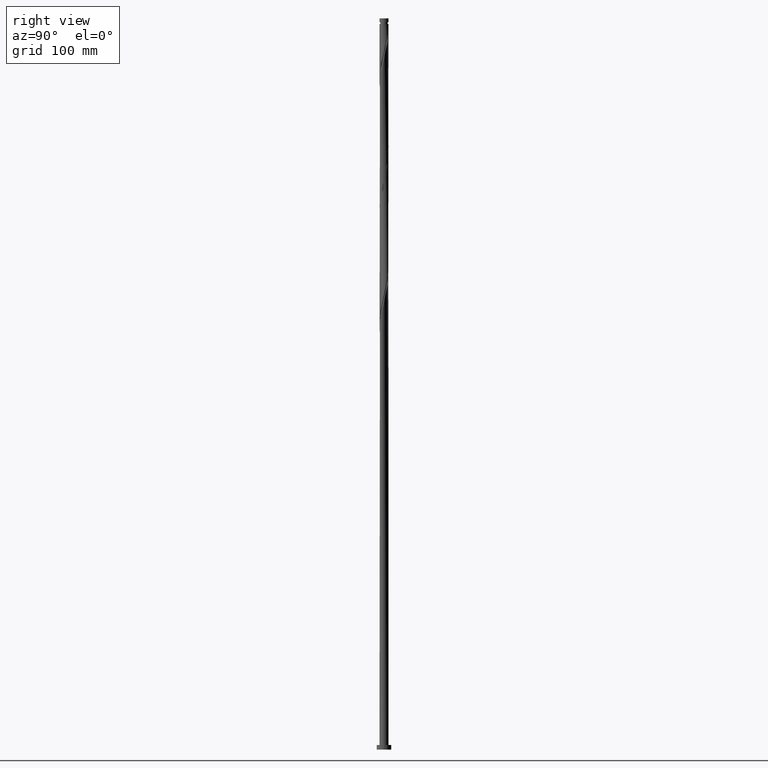
[diagram: clean part render]
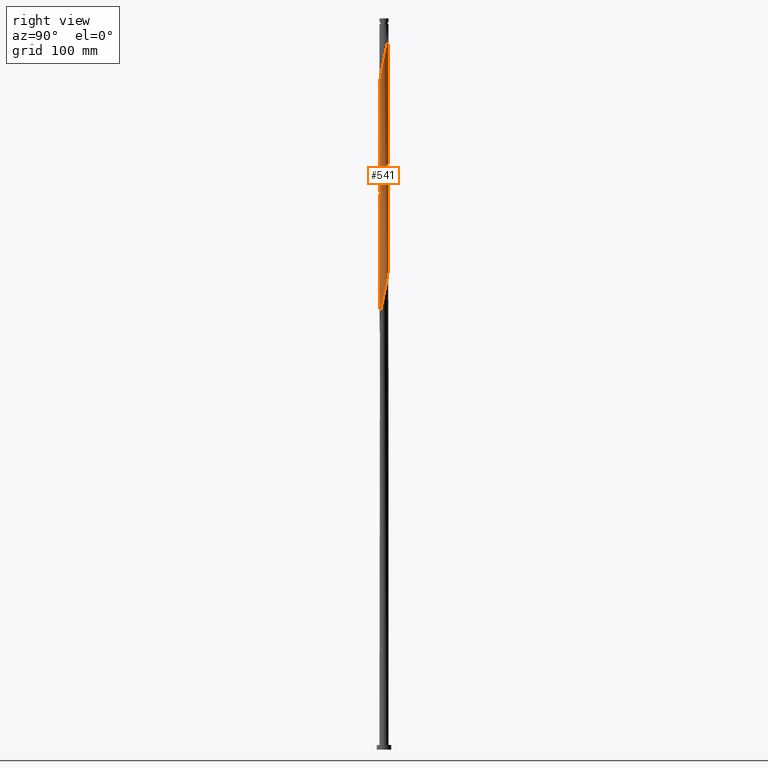
[diagram: same view with one face highlighted and labeled with its STEP entity id]
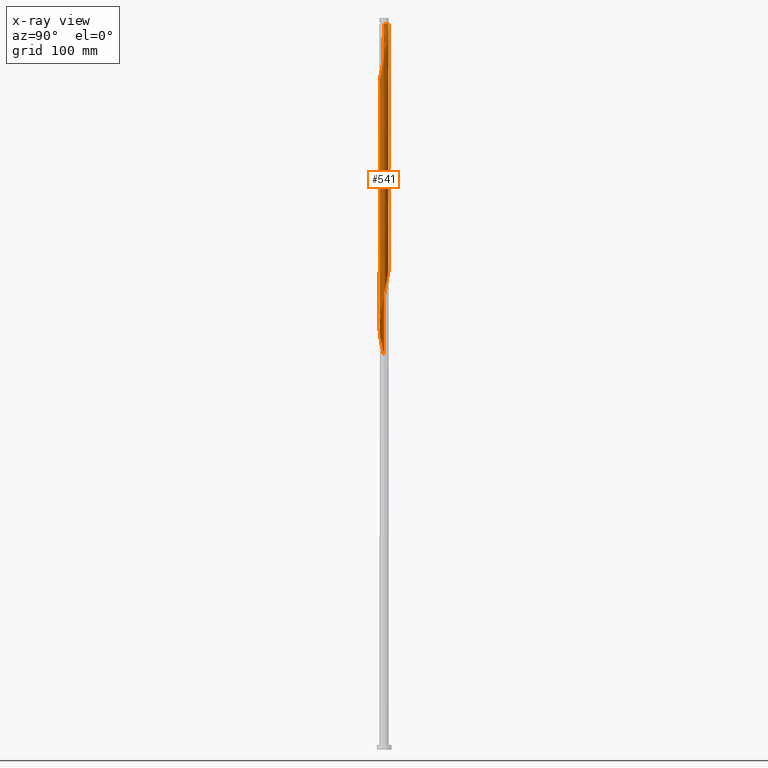
[diagram: x-ray of the same camera — body ghosted, the highlighted face saturated]
A machine part, right view. The second image highlights one B-rep face of the part: STEP entity #541.
The next image is the same camera in x-ray: the body ghosted, the highlighted face saturated — about 0% of this face is hidden behind the body in this view.
In plain terms, the highlighted cylindrical surface (bore or boss wall) has radius 5 mm, axis along (-0, -0, -1).
Its self-contained STEP definition (entity closure, byte-faithful):
#5 = CARTESIAN_POINT ( 'NONE',  ( -4.801098604423230221, -1.396227843371344424, 695.6160161196218041 ) ) ;
#9 = CARTESIAN_POINT ( 'NONE',  ( 0.6499511258119734514, -4.957576377026960301, 600.8791740143583411 ) ) ;
#20 = DIRECTION ( 'NONE',  ( -0.000000000000000000, -0.000000000000000000, -1.000000000000000000 ) ) ;
#24 = CARTESIAN_POINT ( 'NONE',  ( -2.224457399218035203, 4.477922428879730354, 541.2300512073406935 ) ) ;
#34 = CARTESIAN_POINT ( 'NONE',  ( -4.799375357805534925, -1.462070604540713914, 571.0546126108495173 ) ) ;
#35 = CARTESIAN_POINT ( 'NONE',  ( 5.000000000000000888, 0.1192366712258331463, 631.9532187072715033 ) ) ;
#39 = CARTESIAN_POINT ( 'NONE',  ( -0.2391546351814064497, 5.011432862789276577, 665.7914547161126393 ) ) ;
#49 = CARTESIAN_POINT ( 'NONE',  ( -0.2391546351814064497, 5.011432862789276577, 532.4581213827794954 ) ) ;
#53 = CARTESIAN_POINT ( 'NONE',  ( 0.9949874371066296241, 4.899999999999997691, 660.5282968213758750 ) ) ;
#61 = CARTESIAN_POINT ( 'NONE',  ( -4.974567045559859402, -0.6521786465401323563, 434.2125073476916555 ) ) ;
#70 = CARTESIAN_POINT ( 'NONE',  ( 0.5889618610978697433, -4.982447009647494873, 725.4405775231304006 ) ) ;
#72 = ORIENTED_EDGE ( 'NONE', *, *, #748, .F. ) ;
#75 = CARTESIAN_POINT ( 'NONE',  ( 0.2391546351814050897, -5.011432862789275688, 465.7914547161126961 ) ) ;
#82 = VERTEX_POINT ( 'NONE', #686 ) ;
#83 = CARTESIAN_POINT ( 'NONE',  ( 4.064598413571491875, -2.941206217551778135, 742.9844371722532514 ) ) ;
#88 = CARTESIAN_POINT ( 'NONE',  ( 2.532103672393923866, 4.311432591639258405, 520.1774196283934089 ) ) ;
#92 = AXIS2_PLACEMENT_3D ( 'NONE', #1041, #531, #1730 ) ;
#98 = CARTESIAN_POINT ( 'NONE',  ( 3.525055956709932659, -3.570102908858084234, 739.4756652424288177 ) ) ;
#102 = CARTESIAN_POINT ( 'NONE',  ( -0.6499511258119736734, 4.957576377026959413, 534.2125073476917123 ) ) ;
#111 = CARTESIAN_POINT ( 'NONE',  ( 0.2391546351814078653, 5.011432862789283682, 788.5984722599725956 ) ) ;
#143 = CARTESIAN_POINT ( 'NONE',  ( 0.6499511258119766710, 4.957576377026966519, 786.8440862950601513 ) ) ;
#159 = CARTESIAN_POINT ( 'NONE',  ( 0.000000000000000000, 0.000000000000000000, 800.0000000000000000 ) ) ;
#165 = DIRECTION ( 'NONE',  ( -0.000000000000000000, -0.000000000000000000, -1.000000000000000000 ) ) ;
#167 = CARTESIAN_POINT ( 'NONE',  ( -4.994316278799814768, -0.2383378008524572045, 565.7914547161126393 ) ) ;
#181 = CARTESIAN_POINT ( 'NONE',  ( -3.849006011064417088, 3.218199341955536585, 550.0019810319021190 ) ) ;
#191 = CARTESIAN_POINT ( 'NONE',  ( -3.525055956709929106, -3.570102908858077573, 581.5809284003231596 ) ) ;
#200 = LINE ( 'NONE', #367, #1232 ) ;
#203 = CARTESIAN_POINT ( 'NONE',  ( -3.266812383747513149, 3.807832864920276172, 546.4932091020776852 ) ) ;
#214 = CARTESIAN_POINT ( 'NONE',  ( -3.207207559597157420, -3.835859704116256097, 583.3353143652356039 ) ) ;
#220 = CARTESIAN_POINT ( 'NONE',  ( -3.266812383747513149, 3.807832864920276172, 679.8265424354110564 ) ) ;
#228 = CARTESIAN_POINT ( 'NONE',  ( 3.794827185140709158, 3.255654563204924301, 513.1598757687442003 ) ) ;
#233 = CARTESIAN_POINT ( 'NONE',  ( 2.889359162484385735, -4.101616499374442171, 735.9668933126039292 ) ) ;
#239 = CARTESIAN_POINT ( 'NONE',  ( -4.278933817449789956, -2.586643652667403703, 442.9844371722531378 ) ) ;
#240 =( BOUNDED_CURVE ( )  B_SPLINE_CURVE ( 2, ( #1726, #717, #884, #1408, #1443, #1935, #919, #1082, #1105, #1070, #1764, #220, #1633, #243, #903, #894, #1611, #590, #1598, #39, #256, #934, #53, #1270, #1419, #564, #1245, #1778, #766, #1455, #2151, #1945, #741, #577, #1957, #1229, #1219, #1581, #1608, #35, #345 ),
 .UNSPECIFIED., .F., .T. ) 
 B_SPLINE_CURVE_WITH_KNOTS ( ( 3, 2, 2, 2, 2, 2, 2, 2, 2, 2, 2, 2, 2, 2, 2, 2, 2, 2, 2, 2, 3 ),
 ( 0.4295295809515958241, 0.4342105263157894912, 0.4407894736842105088, 0.4473684210526315819, 0.4539473684210526550, 0.4605263157894736725, 0.4671052631578947456, 0.4736842105263157632, 0.4802631578947368363, 0.4868421052631579093, 0.4934210526315789269, 0.5000000000000000000, 0.5065789473684210176, 0.5131578947368421462, 0.5197368421052631637, 0.5263157894736841813, 0.5328947368421053099, 0.5394736842105263275, 0.5460526315789473450, 0.5526315789473684736, 0.5545295809515955465 ),
 .UNSPECIFIED. ) 
 CURVE ( )  GEOMETRIC_REPRESENTATION_ITEM ( )  RATIONAL_B_SPLINE_CURVE ( ( 0.9078162034606489517, 0.9068816855934562771, 0.9090909090909780055, 0.9059859027334048465, 0.9090909090909780055, 0.9059859027334048465, 0.9090909090909780055, 0.9059859027334048465, 0.9090909090909780055, 0.9059859027334048465, 0.9090909090909780055, 0.9059859027334048465, 0.9090909090909780055, 0.9059859027334048465, 0.9090909090909780055, 0.9059859027334048465, 0.9090909090909780055, 0.9059859027334048465, 0.9090909090909780055, 0.9059859027334048465, 0.9090909090909780055, 0.9059859027334048465, 0.9090909090909780055, 0.9059859027334048465, 0.9090909090909780055, 0.9059859027334048465, 0.9090909090909780055, 0.9059859027334048465, 0.9090909090909780055, 0.9059859027334048465, 0.9090909090909780055, 0.9059859027334048465, 0.9090909090909780055, 0.9059859027334048465, 0.9090909090909780055, 0.9059859027334048465, 0.9090909090909780055, 0.9059859027334048465, 0.9090909090909780055, 0.9081951262309266859, 0.9078162034606491737 ) ) 
 REPRESENTATION_ITEM ( '' )  );
#243 = CARTESIAN_POINT ( 'NONE',  ( -2.595508630546284223, 4.293598633609434501, 676.3177705055863953 ) ) ;
#247 = CARTESIAN_POINT ( 'NONE',  ( -4.326208788009316741, -2.540781730161819407, 700.8791740143582274 ) ) ;
#250 = ORIENTED_EDGE ( 'NONE', *, *, #380, .T. ) ;
#252 = CARTESIAN_POINT ( 'NONE',  ( 3.207207559597159641, 3.835859704116254321, 516.6686476985687477 ) ) ;
#256 = CARTESIAN_POINT ( 'NONE',  ( 0.1749036129582320631, 4.996939936218380396, 664.0370687512006498 ) ) ;
#261 = EDGE_LOOP ( 'NONE', ( #1636, #250, #72, #1460, #1363, #1934, #571, #454 ) ) ;
#263 = CARTESIAN_POINT ( 'NONE',  ( 0.1749036129582320631, 4.996939936218380396, 530.7037354178671649 ) ) ;
#268 = CARTESIAN_POINT ( 'NONE',  ( 3.207207559597160973, -3.835859704116263202, 737.7212792775163734 ) ) ;
#272 = CARTESIAN_POINT ( 'NONE',  ( 0.9949874371066296241, 4.899999999999997691, 527.1949634880425037 ) ) ;
#283 = CARTESIAN_POINT ( 'NONE',  ( 3.557909197405970669, 3.513016103437909265, 772.8089985757619615 ) ) ;
#316 = CARTESIAN_POINT ( 'NONE',  ( -5.000000000000007105, -5.822197897237592132E-16, 689.6096979539203176 ) ) ;
#333 =( BOUNDED_CURVE ( )  B_SPLINE_CURVE ( 2, ( #2245, #1892, #859, #561, #1228, #1415, #357, #1919, #1055, #1567, #1240, #714, #1930, #726, #679, #879, #2103, #890, #9, #382, #1366, #1404, #1065, #700, #1761, #1548, #1736, #347, #214, #191, #513, #1594, #1381, #1078, #1749, #34, #1904, #1942, #167, #389, #1558, #369, #2237, #2089, #1199, #1032, #1722, #181, #691, #203, #536, #1580, #24, #2077, #525, #1207, #102, #49, #263, #1467, #272, #1978, #1607, #2162, #88, #607, #252, #1292, #228, #1100, #1253, #1126, #1799, #2125, #1991, #750, #445, #1115, #953, #1265, #435, #1426, #596, #1480, #1280, #1820, #1966, #777, #2175, #1652, #737, #573, #424, #415, #1617, #75, #929, #761, #791, #1773, #1953, #620, #1809, #400, #914, #1629, #1303, #941, #239, #1088, #2003, #1784, #900, #61, #1439, #2137, #586 ),
 .UNSPECIFIED., .F., .T. ) 
 B_SPLINE_CURVE_WITH_KNOTS ( ( 3, 2, 2, 2, 2, 2, 2, 2, 2, 2, 2, 2, 2, 2, 2, 2, 2, 2, 2, 2, 2, 2, 2, 2, 2, 2, 2, 2, 2, 2, 2, 2, 2, 2, 2, 2, 2, 2, 2, 2, 2, 2, 2, 2, 2, 2, 2, 2, 2, 2, 2, 2, 2, 2, 2, 2, 2, 2, 3 ),
 ( 0.5545295809515955465, 0.5592105263157894912, 0.5657894736842105088, 0.5723684210526315264, 0.5789473684210526550, 0.5855263157894736725, 0.5921052631578946901, 0.5986842105263158187, 0.6052631578947368363, 0.6118421052631578538, 0.6184210526315789824, 0.6250000000000000000, 0.6315789473684210176, 0.6381578947368421462, 0.6447368421052631637, 0.6513157894736841813, 0.6578947368421053099, 0.6644736842105263275, 0.6710526315789473450, 0.6776315789473684736, 0.6842105263157894912, 0.6907894736842105088, 0.6973684210526315264, 0.7039473684210526550, 0.7105263157894736725, 0.7171052631578946901, 0.7236842105263158187, 0.7302631578947368363, 0.7368421052631578538, 0.7434210526315789824, 0.7500000000000000000, 0.7565789473684210176, 0.7631578947368421462, 0.7697368421052631637, 0.7763157894736841813, 0.7828947368421053099, 0.7894736842105263275, 0.7960526315789473450, 0.8026315789473684736, 0.8092105263157894912, 0.8157894736842105088, 0.8223684210526315264, 0.8289473684210526550, 0.8355263157894736725, 0.8421052631578946901, 0.8486842105263158187, 0.8552631578947368363, 0.8618421052631578538, 0.8684210526315789824, 0.8750000000000000000, 0.8815789473684210176, 0.8881578947368422572, 0.8947368421052632748, 0.9013157894736841813, 0.9078947368421053099, 0.9144736842105263275, 0.9210526315789473450, 0.9276315789473684736, 0.9295295809515958796 ),
 .UNSPECIFIED. ) 
 CURVE ( )  GEOMETRIC_REPRESENTATION_ITEM ( )  RATIONAL_B_SPLINE_CURVE ( ( 0.9078162034606491737, 0.9068816855934561660, 0.9090909090909780055, 0.9059859027334048465, 0.9090909090909780055, 0.9059859027334048465, 0.9090909090909780055, 0.9059859027334048465, 0.9090909090909780055, 0.9059859027334048465, 0.9090909090909780055, 0.9059859027334048465, 0.9090909090909780055, 0.9059859027334048465, 0.9090909090909780055, 0.9059859027334048465, 0.9090909090909780055, 0.9059859027334048465, 0.9090909090909780055, 0.9059859027334048465, 0.9090909090909780055, 0.9059859027334048465, 0.9090909090909780055, 0.9059859027334048465, 0.9090909090909780055, 0.9059859027334048465, 0.9090909090909780055, 0.9059859027334048465, 0.9090909090909780055, 0.9059859027334048465, 0.9090909090909780055, 0.9059859027334048465, 0.9090909090909780055, 0.9059859027334048465, 0.9090909090909780055, 0.9059859027334048465, 0.9090909090909780055, 0.9059859027334048465, 0.9090909090909780055, 0.9059859027334048465, 0.9090909090909780055, 0.9059859027334048465, 0.9090909090909780055, 0.9059859027334048465, 0.9090909090909780055, 0.9059859027334048465, 0.9090909090909780055, 0.9059859027334048465, 0.9090909090909780055, 0.9059859027334048465, 0.9090909090909780055, 0.9059859027334048465, 0.9090909090909780055, 0.9059859027334048465, 0.9090909090909780055, 0.9059859027334048465, 0.9090909090909780055, 0.9059859027334048465, 0.9090909090909780055, 0.9059859027334048465, 0.9090909090909780055, 0.9059859027334048465, 0.9090909090909780055, 0.9059859027334048465, 0.9090909090909780055, 0.9059859027334048465, 0.9090909090909780055, 0.9059859027334048465, 0.9090909090909780055, 0.9059859027334048465, 0.9090909090909780055, 0.9059859027334048465, 0.9090909090909780055, 0.9059859027334048465, 0.9090909090909780055, 0.9059859027334048465, 0.9090909090909780055, 0.9059859027334048465, 0.9090909090909780055, 0.9059859027334048465, 0.9090909090909780055, 0.9059859027334048465, 0.9090909090909780055, 0.9059859027334048465, 0.9090909090909780055, 0.9059859027334048465, 0.9090909090909780055, 0.9059859027334048465, 0.9090909090909780055, 0.9059859027334048465, 0.9090909090909780055, 0.9059859027334048465, 0.9090909090909780055, 0.9059859027334048465, 0.9090909090909780055, 0.9059859027334048465, 0.9090909090909780055, 0.9059859027334048465, 0.9090909090909780055, 0.9059859027334048465, 0.9090909090909780055, 0.9059859027334048465, 0.9090909090909780055, 0.9059859027334048465, 0.9090909090909780055, 0.9059859027334048465, 0.9090909090909780055, 0.9059859027334048465, 0.9090909090909780055, 0.9059859027334048465, 0.9090909090909780055, 0.9059859027334048465, 0.9090909090909780055, 0.9059859027334048465, 0.9090909090909780055, 0.9081951262309264639, 0.9078162034606489517 ) ) 
 REPRESENTATION_ITEM ( '' )  );
#345 = CARTESIAN_POINT ( 'NONE',  ( 5.000000000000000888, -5.911770172579741004E-15, 631.4468956888314324 ) ) ;
#347 = CARTESIAN_POINT ( 'NONE',  ( -2.889359162484385735, -4.101616499374435065, 585.0897003301478208 ) ) ;
#357 = CARTESIAN_POINT ( 'NONE',  ( 4.505806327405622369, -2.167419973127374000, 621.9318055933055120 ) ) ;
#367 = CARTESIAN_POINT ( 'NONE',  ( -5.000000000000000000, 0.000000000000000000, 800.0000000000000000 ) ) ;
#369 = CARTESIAN_POINT ( 'NONE',  ( -4.916793342044511128, 0.9983974706497559248, 560.5282968213757613 ) ) ;
#378 = VECTOR ( 'NONE', #2068, 1000.000000000000000 ) ;
#380 = EDGE_CURVE ( 'NONE', #1534, #2071, #1348, .T. ) ;
#382 = CARTESIAN_POINT ( 'NONE',  ( 0.2391546351814050897, -5.011432862789275688, 599.1247880494461242 ) ) ;
#389 = CARTESIAN_POINT ( 'NONE',  ( -5.014065512039769246, 0.1755030448352179751, 564.0370687512004224 ) ) ;
#396 = CARTESIAN_POINT ( 'NONE',  ( -4.965429427042146848, -0.5869502577424865475, 692.1072441897971430 ) ) ;
#400 = CARTESIAN_POINT ( 'NONE',  ( -2.889359162484385735, -4.101616499374435065, 451.7563669968144495 ) ) ;
#411 = CARTESIAN_POINT ( 'NONE',  ( -1.853406167889788181, -4.662246224150030649, 714.9142617336564172 ) ) ;
#415 = CARTESIAN_POINT ( 'NONE',  ( 1.060747616442539787, -4.903719891264644914, 469.3002266459372436 ) ) ;
#424 = CARTESIAN_POINT ( 'NONE',  ( 1.457076892166162319, -4.782983057707333785, 471.0546126108495173 ) ) ;
#432 = CARTESIAN_POINT ( 'NONE',  ( -2.224457399218039200, -4.477922428879735683, 713.1598757687446550 ) ) ;
#435 = CARTESIAN_POINT ( 'NONE',  ( 4.801098604423221339, -1.396227843371345312, 492.1072441897969725 ) ) ;
#445 = CARTESIAN_POINT ( 'NONE',  ( 4.994316278799814768, 0.2383378008524554004, 499.1247880494460105 ) ) ;
#454 = ORIENTED_EDGE ( 'NONE', *, *, #640, .F. ) ;
#455 = CARTESIAN_POINT ( 'NONE',  ( -0.5889618610978899493, 4.982447009647493985, 792.1072441897970293 ) ) ;
#508 = VERTEX_POINT ( 'NONE', #1211 ) ;
#513 = CARTESIAN_POINT ( 'NONE',  ( -3.794827185140709158, -3.255654563204924745, 579.8265424354109427 ) ) ;
#518 = VECTOR ( 'NONE', #165, 1000.000000000000000 ) ;
#525 = CARTESIAN_POINT ( 'NONE',  ( -1.457076892166162319, 4.782983057707333785, 537.7212792775162598 ) ) ;
#531 = DIRECTION ( 'NONE',  ( -0.000000000000000000, -0.000000000000000000, -1.000000000000000000 ) ) ;
#533 = CARTESIAN_POINT ( 'NONE',  ( -3.557909197405970669, -3.513016103437910154, 706.1423319090953328 ) ) ;
#536 = CARTESIAN_POINT ( 'NONE',  ( -2.931160507146898020, 4.050715749264855781, 544.7388231371652410 ) ) ;
#539 = FACE_OUTER_BOUND ( 'NONE', #261, .T. ) ;
#541 = ADVANCED_FACE ( 'NONE', ( #539 ), #1531, .T. ) ;
#561 = CARTESIAN_POINT ( 'NONE',  ( 4.916793342044511128, -0.9983974706497565910, 627.1949634880425037 ) ) ;
#564 = CARTESIAN_POINT ( 'NONE',  ( 2.174848182303464217, 4.521248683904080856, 655.2651389266392243 ) ) ;
#571 = ORIENTED_EDGE ( 'NONE', *, *, #1657, .T. ) ;
#573 = CARTESIAN_POINT ( 'NONE',  ( 1.853406167889783740, -4.662246224150026208, 472.8089985757617910 ) ) ;
#577 = CARTESIAN_POINT ( 'NONE',  ( 4.493269221328091589, 2.232081087783037709, 641.2300512073406935 ) ) ;
#581 = CARTESIAN_POINT ( 'NONE',  ( 4.493269221328096030, -2.232081087783042150, 746.4932091020777989 ) ) ;
#586 = CARTESIAN_POINT ( 'NONE',  ( -5.000000000000000000, 3.911322689939121366E-15, 431.4468956888313187 ) ) ;
#590 = CARTESIAN_POINT ( 'NONE',  ( -1.060747616442540675, 4.903719891264643138, 669.3002266459373004 ) ) ;
#593 = CARTESIAN_POINT ( 'NONE',  ( 4.965429427042146848, 0.5869502577424847711, 758.7739108564636581 ) ) ;
#596 = CARTESIAN_POINT ( 'NONE',  ( 4.505806327405622369, -2.167419973127374000, 488.5984722599723113 ) ) ;
#603 = CARTESIAN_POINT ( 'NONE',  ( -4.087607399536869579, -2.879490536058679329, 702.6335599792705580 ) ) ;
#607 = CARTESIAN_POINT ( 'NONE',  ( 2.889359162484386623, 4.101616499374434177, 518.4230336634811920 ) ) ;
#615 = CARTESIAN_POINT ( 'NONE',  ( 5.014065512039775463, 0.1755030448352140060, 757.0195248915514412 ) ) ;
#618 = EDGE_CURVE ( 'NONE', #1534, #508, #1884, .T. ) ;
#620 = CARTESIAN_POINT ( 'NONE',  ( -2.174848182303464661, -4.521248683904080856, 455.2651389266389970 ) ) ;
#627 = CARTESIAN_POINT ( 'NONE',  ( 2.595508630546290885, 4.293598633609438942, 778.0721564704986122 ) ) ;
#640 = EDGE_CURVE ( 'NONE', #508, #1108, #240, .T. ) ;
#672 = DIRECTION ( 'NONE',  ( -0.000000000000000000, -0.000000000000000000, -1.000000000000000000 ) ) ;
#679 = CARTESIAN_POINT ( 'NONE',  ( 2.224457399218034759, -4.477922428879730354, 607.8967178740074360 ) ) ;
#683 = CARTESIAN_POINT ( 'NONE',  ( -5.000000000000000000, 0.000000000000000000, 800.0000000000000000 ) ) ;
#686 = CARTESIAN_POINT ( 'NONE',  ( -5.000000000000000000, 3.911322689939121366E-15, 431.4468956888313187 ) ) ;
#691 = CARTESIAN_POINT ( 'NONE',  ( -3.557909197405964008, 3.513016103437906157, 548.2475950669899021 ) ) ;
#700 = CARTESIAN_POINT ( 'NONE',  ( -1.401013013115387063, -4.817552990352508502, 592.1072441897969156 ) ) ;
#714 = CARTESIAN_POINT ( 'NONE',  ( 3.266812383747511817, -3.807832864920277061, 613.1598757687443140 ) ) ;
#717 = CARTESIAN_POINT ( 'NONE',  ( -4.999999999999998224, 0.2944932087671933152, 696.8630352413129003 ) ) ;
#726 = CARTESIAN_POINT ( 'NONE',  ( 2.595508630546283335, -4.293598633609436277, 609.6511038389197665 ) ) ;
#737 = CARTESIAN_POINT ( 'NONE',  ( 2.224457399218034759, -4.477922428879730354, 474.5633845406741216 ) ) ;
#741 = CARTESIAN_POINT ( 'NONE',  ( 4.278933817449791732, 2.586643652667402371, 642.9844371722527967 ) ) ;
#746 = CARTESIAN_POINT ( 'NONE',  ( -1.060747616442544672, -4.903719891264648467, 718.4230336634810783 ) ) ;
#748 = EDGE_CURVE ( 'NONE', #1621, #2071, #1642, .T. ) ;
#750 = CARTESIAN_POINT ( 'NONE',  ( 4.974567045559859402, 0.6521786465401315791, 500.8791740143584548 ) ) ;
#756 = CARTESIAN_POINT ( 'NONE',  ( 4.974567045559865619, -0.6521786465401347987, 753.5107529617266664 ) ) ;
#761 = CARTESIAN_POINT ( 'NONE',  ( -0.5889618610978728519, -4.982447009647488656, 462.2826827862881487 ) ) ;
#766 = CARTESIAN_POINT ( 'NONE',  ( 3.207207559597159641, 3.835859704116254321, 650.0019810319020053 ) ) ;
#770 = CARTESIAN_POINT ( 'NONE',  ( 4.886971201682704269, -1.057124625540427409, 751.7563669968146769 ) ) ;
#777 = CARTESIAN_POINT ( 'NONE',  ( 3.266812383747511817, -3.807832864920277061, 479.8265424354109996 ) ) ;
#785 = CARTESIAN_POINT ( 'NONE',  ( 4.087607399536869579, 2.879490536058681105, 769.3002266459375278 ) ) ;
#791 = CARTESIAN_POINT ( 'NONE',  ( -0.9949874371066288470, -4.899999999999997691, 460.5282968213759318 ) ) ;
#798 = CARTESIAN_POINT ( 'NONE',  ( -0.1749036129582282328, 4.996939936218388389, 790.3528582248849261 ) ) ;
#808 = VERTEX_POINT ( 'NONE', #1036 ) ;
#832 = CARTESIAN_POINT ( 'NONE',  ( 2.224457399218039644, 4.477922428879734795, 779.8265424354110564 ) ) ;
#857 = LINE ( 'NONE', #1376, #518 ) ;
#859 = CARTESIAN_POINT ( 'NONE',  ( 4.965429427042139743, -0.5869502577424862144, 628.9493494529547206 ) ) ;
#879 = CARTESIAN_POINT ( 'NONE',  ( 1.853406167889783740, -4.662246224150026208, 606.1423319090952191 ) ) ;
#884 = CARTESIAN_POINT ( 'NONE',  ( -4.965429427042139743, 0.5869502577424867695, 695.6160161196216905 ) ) ;
#890 = CARTESIAN_POINT ( 'NONE',  ( 1.060747616442539787, -4.903719891264644914, 602.6335599792705580 ) ) ;
#894 = CARTESIAN_POINT ( 'NONE',  ( -1.853406167889784628, 4.662246224150025320, 672.8089985757618479 ) ) ;
#900 = CARTESIAN_POINT ( 'NONE',  ( -4.886971201682697163, -1.057124625540422302, 435.9668933126039292 ) ) ;
#903 = CARTESIAN_POINT ( 'NONE',  ( -2.224457399218035203, 4.477922428879730354, 674.5633845406739511 ) ) ;
#909 = CARTESIAN_POINT ( 'NONE',  ( -0.2391546351814093085, -5.011432862789283682, 721.9318055933058531 ) ) ;
#914 = CARTESIAN_POINT ( 'NONE',  ( -3.207207559597157420, -3.835859704116256097, 450.0019810319021190 ) ) ;
#919 = CARTESIAN_POINT ( 'NONE',  ( -4.505806327405622369, 2.167419973127374888, 688.5984722599722545 ) ) ;
#924 = CARTESIAN_POINT ( 'NONE',  ( -3.849006011064423305, -3.218199341955540138, 704.3879459441833433 ) ) ;
#929 = CARTESIAN_POINT ( 'NONE',  ( -0.1749036129582328125, -4.996939936218382172, 464.0370687512004224 ) ) ;
#934 = CARTESIAN_POINT ( 'NONE',  ( 0.5889618610978712976, 4.982447009647488656, 662.2826827862883192 ) ) ;
#938 = CARTESIAN_POINT ( 'NONE',  ( -4.505806327405627698, -2.167419973127375776, 699.1247880494463516 ) ) ;
#941 = CARTESIAN_POINT ( 'NONE',  ( -4.064598413571486546, -2.941206217551772362, 444.7388231371654115 ) ) ;
#949 = CARTESIAN_POINT ( 'NONE',  ( 4.505806327405629474, 2.167419973127374444, 765.7914547161128667 ) ) ;
#953 = CARTESIAN_POINT ( 'NONE',  ( 4.965429427042139743, -0.5869502577424862144, 495.6160161196214062 ) ) ;
#960 = CARTESIAN_POINT ( 'NONE',  ( 3.266812383747518922, 3.807832864920280169, 774.5633845406742921 ) ) ;
#991 = CARTESIAN_POINT ( 'NONE',  ( 1.060747616442545560, 4.903719891264649355, 785.0897003301479344 ) ) ;
#1002 = CARTESIAN_POINT ( 'NONE',  ( 1.853406167889788625, 4.662246224150031537, 781.5809284003232733 ) ) ;
#1008 = CARTESIAN_POINT ( 'NONE',  ( -5.000000000000005329, -0.2944932087671843224, 690.8602250681055921 ) ) ;
#1032 = CARTESIAN_POINT ( 'NONE',  ( -4.326208788009311412, 2.540781730161816743, 553.5107529617267801 ) ) ;
#1036 = CARTESIAN_POINT ( 'NONE',  ( 5.000000000000000000, 6.123233995736766282E-16, 793.8616301547092462 ) ) ;
#1041 = CARTESIAN_POINT ( 'NONE',  ( 0.000000000000000000, 0.000000000000000000, 793.8616301547092462 ) ) ;
#1055 = CARTESIAN_POINT ( 'NONE',  ( 4.087607399536862474, -2.879490536058677552, 618.4230336634811920 ) ) ;
#1065 = CARTESIAN_POINT ( 'NONE',  ( -0.9949874371066288470, -4.899999999999997691, 593.8616301547091325 ) ) ;
#1070 = CARTESIAN_POINT ( 'NONE',  ( -3.849006011064417088, 3.218199341955536585, 683.3353143652357176 ) ) ;
#1078 = CARTESIAN_POINT ( 'NONE',  ( -4.493269221328091589, -2.232081087783038154, 574.5633845406741784 ) ) ;
#1082 = CARTESIAN_POINT ( 'NONE',  ( -4.326208788009311412, 2.540781730161816743, 686.8440862950602650 ) ) ;
#1088 = CARTESIAN_POINT ( 'NONE',  ( -4.493269221328091589, -2.232081087783038154, 441.2300512073407504 ) ) ;
#1091 = CARTESIAN_POINT ( 'NONE',  ( 5.000000000000000000, -5.911770172579741004E-15, 631.4468956888314324 ) ) ;
#1100 = CARTESIAN_POINT ( 'NONE',  ( 4.064598413571489210, 2.941206217551771473, 511.4054898038320403 ) ) ;
#1105 = CARTESIAN_POINT ( 'NONE',  ( -4.087607399536863362, 2.879490536058676664, 685.0897003301477071 ) ) ;
#1108 = VERTEX_POINT ( 'NONE', #1091 ) ;
#1115 = CARTESIAN_POINT ( 'NONE',  ( 5.014065512039768358, -0.1755030448352206673, 497.3704020845337936 ) ) ;
#1122 = CARTESIAN_POINT ( 'NONE',  ( 4.685403866801941319, 1.794058216092929703, 764.0370687512004224 ) ) ;
#1126 = CARTESIAN_POINT ( 'NONE',  ( 4.493269221328091589, 2.232081087783037709, 507.8967178740073791 ) ) ;
#1132 = CARTESIAN_POINT ( 'NONE',  ( 0.9949874371066286249, -4.900000000000006573, 727.1949634880427311 ) ) ;
#1173 = EDGE_CURVE ( 'NONE', #1108, #82, #333, .T. ) ;
#1187 = CARTESIAN_POINT ( 'NONE',  ( -4.999999999999915623, 0.000000000000000000, 793.8616301547092462 ) ) ;
#1199 = CARTESIAN_POINT ( 'NONE',  ( -4.505806327405622369, 2.167419973127374888, 555.2651389266389970 ) ) ;
#1207 = CARTESIAN_POINT ( 'NONE',  ( -1.060747616442540675, 4.903719891264643138, 535.9668933126039292 ) ) ;
#1211 = CARTESIAN_POINT ( 'NONE',  ( -5.000000000000000000, 1.910875207298502123E-15, 698.1135623554980612 ) ) ;
#1219 = CARTESIAN_POINT ( 'NONE',  ( 4.886971201682697163, 1.057124625540423413, 635.9668933126037018 ) ) ;
#1228 = CARTESIAN_POINT ( 'NONE',  ( 4.801098604423221339, -1.396227843371345312, 625.4405775231302869 ) ) ;
#1229 = CARTESIAN_POINT ( 'NONE',  ( 4.799375357805534925, 1.462070604540711249, 637.7212792775162598 ) ) ;
#1232 = VECTOR ( 'NONE', #20, 1000.000000000000000 ) ;
#1240 = CARTESIAN_POINT ( 'NONE',  ( 3.557909197405964008, -3.513016103437906157, 614.9142617336566445 ) ) ;
#1245 = CARTESIAN_POINT ( 'NONE',  ( 2.532103672393923866, 4.311432591639258405, 653.5107529617266664 ) ) ;
#1250 = CARTESIAN_POINT ( 'NONE',  ( 0.1749036129582310639, -4.996939936218388389, 723.6861915582180700 ) ) ;
#1253 = CARTESIAN_POINT ( 'NONE',  ( 4.278933817449791732, 2.586643652667402371, 509.6511038389196528 ) ) ;
#1265 = CARTESIAN_POINT ( 'NONE',  ( 4.916793342044511128, -0.9983974706497565910, 493.8616301547091894 ) ) ;
#1270 = CARTESIAN_POINT ( 'NONE',  ( 1.401013013115388173, 4.817552990352508502, 658.7739108564637718 ) ) ;
#1276 = CARTESIAN_POINT ( 'NONE',  ( -3.266812383747517590, -3.807832864920281057, 707.8967178740075497 ) ) ;
#1280 = CARTESIAN_POINT ( 'NONE',  ( 4.087607399536862474, -2.879490536058677552, 485.0897003301478208 ) ) ;
#1289 = CARTESIAN_POINT ( 'NONE',  ( 3.794827185140713599, -3.255654563204931407, 741.2300512073410346 ) ) ;
#1292 = CARTESIAN_POINT ( 'NONE',  ( 3.525055956709929550, 3.570102908858077573, 514.9142617336566445 ) ) ;
#1299 = CARTESIAN_POINT ( 'NONE',  ( 4.799375357805542031, -1.462070604540719909, 750.0019810319023463 ) ) ;
#1303 = CARTESIAN_POINT ( 'NONE',  ( -3.794827185140709158, -3.255654563204924745, 446.4932091020775147 ) ) ;
#1348 = CIRCLE ( 'NONE', #92, 4.999999999999915623 ) ;
#1361 = DIRECTION ( 'NONE',  ( -1.000000000000000000, 0.000000000000000000, 0.000000000000000000 ) ) ;
#1363 = ORIENTED_EDGE ( 'NONE', *, *, #1173, .F. ) ;
#1366 = CARTESIAN_POINT ( 'NONE',  ( -0.1749036129582328125, -4.996939936218382172, 597.3704020845337936 ) ) ;
#1376 = CARTESIAN_POINT ( 'NONE',  ( 5.000000000000000000, 6.123233995736766282E-16, 800.0000000000000000 ) ) ;
#1380 = EDGE_CURVE ( 'NONE', #1621, #82, #200, .T. ) ;
#1381 = CARTESIAN_POINT ( 'NONE',  ( -4.278933817449789956, -2.586643652667403703, 576.3177705055862816 ) ) ;
#1404 = CARTESIAN_POINT ( 'NONE',  ( -0.5889618610978728519, -4.982447009647488656, 595.6160161196215768 ) ) ;
#1408 = CARTESIAN_POINT ( 'NONE',  ( -4.916793342044511128, 0.9983974706497559248, 693.8616301547091325 ) ) ;
#1415 = CARTESIAN_POINT ( 'NONE',  ( 4.685403866801931549, -1.794058216092933922, 623.6861915582178426 ) ) ;
#1419 = CARTESIAN_POINT ( 'NONE',  ( 1.787930597709427083, 4.669400837128293347, 657.0195248915513275 ) ) ;
#1426 = CARTESIAN_POINT ( 'NONE',  ( 4.685403866801931549, -1.794058216092933922, 490.3528582248845851 ) ) ;
#1434 = CARTESIAN_POINT ( 'NONE',  ( -1.457076892166166537, -4.782983057707340890, 716.6686476985688614 ) ) ;
#1439 = CARTESIAN_POINT ( 'NONE',  ( -4.994316278799814768, -0.2383378008524572045, 432.4581213827793249 ) ) ;
#1443 = CARTESIAN_POINT ( 'NONE',  ( -4.801098604423221339, 1.396227843371343535, 692.1072441897970293 ) ) ;
#1448 = CARTESIAN_POINT ( 'NONE',  ( 4.994316278799820985, -0.2383378008524581759, 755.2651389266391107 ) ) ;
#1455 = CARTESIAN_POINT ( 'NONE',  ( 3.525055956709929550, 3.570102908858077573, 648.2475950669897884 ) ) ;
#1460 = ORIENTED_EDGE ( 'NONE', *, *, #1380, .T. ) ;
#1461 = CARTESIAN_POINT ( 'NONE',  ( 4.916793342044518234, 0.9983974706497554807, 760.5282968213758750 ) ) ;
#1467 = CARTESIAN_POINT ( 'NONE',  ( 0.5889618610978712976, 4.982447009647488656, 528.9493494529549480 ) ) ;
#1476 = CARTESIAN_POINT ( 'NONE',  ( 3.849006011064424637, 3.218199341955537474, 771.0546126108495173 ) ) ;
#1480 = CARTESIAN_POINT ( 'NONE',  ( 4.326208788009311412, -2.540781730161817187, 486.8440862950600376 ) ) ;
#1531 = CYLINDRICAL_SURFACE ( 'NONE', #2036, 5.000000000000000000 ) ;
#1534 = VERTEX_POINT ( 'NONE', #1187 ) ;
#1548 = CARTESIAN_POINT ( 'NONE',  ( -2.174848182303464661, -4.521248683904080856, 588.5984722599723682 ) ) ;
#1558 = CARTESIAN_POINT ( 'NONE',  ( -4.965429427042139743, 0.5869502577424867695, 562.2826827862879782 ) ) ;
#1565 = CARTESIAN_POINT ( 'NONE',  ( 2.174848182303464217, -4.521248683904087962, 732.4581213827793817 ) ) ;
#1567 = CARTESIAN_POINT ( 'NONE',  ( 3.849006011064415311, -3.218199341955539250, 616.6686476985688614 ) ) ;
#1580 = CARTESIAN_POINT ( 'NONE',  ( -2.595508630546284223, 4.293598633609434501, 542.9844371722530241 ) ) ;
#1581 = CARTESIAN_POINT ( 'NONE',  ( 4.974567045559859402, 0.6521786465401315791, 634.2125073476914849 ) ) ;
#1594 = CARTESIAN_POINT ( 'NONE',  ( -4.064598413571486546, -2.941206217551772362, 578.0721564704988396 ) ) ;
#1598 = CARTESIAN_POINT ( 'NONE',  ( -0.6499511258119736734, 4.957576377026959413, 667.5458406810249699 ) ) ;
#1607 = CARTESIAN_POINT ( 'NONE',  ( 1.787930597709427083, 4.669400837128293347, 523.6861915582179563 ) ) ;
#1608 = CARTESIAN_POINT ( 'NONE',  ( 4.994316278799814768, 0.2383378008524554004, 632.4581213827793817 ) ) ;
#1611 = CARTESIAN_POINT ( 'NONE',  ( -1.457076892166162319, 4.782983057707333785, 671.0546126108494036 ) ) ;
#1617 = CARTESIAN_POINT ( 'NONE',  ( 0.6499511258119734514, -4.957576377026960301, 467.5458406810250267 ) ) ;
#1621 = VERTEX_POINT ( 'NONE', #1878 ) ;
#1626 = CARTESIAN_POINT ( 'NONE',  ( 4.646322289566819030, -1.847075846161879698, 748.2475950669899021 ) ) ;
#1629 = CARTESIAN_POINT ( 'NONE',  ( -3.525055956709929106, -3.570102908858077573, 448.2475950669899021 ) ) ;
#1633 = CARTESIAN_POINT ( 'NONE',  ( -2.931160507146898020, 4.050715749264855781, 678.0721564704987259 ) ) ;
#1636 = ORIENTED_EDGE ( 'NONE', *, *, #618, .F. ) ;
#1637 = CARTESIAN_POINT ( 'NONE',  ( 1.787930597709425529, -4.669400837128304005, 730.7037354178672786 ) ) ;
#1642 =( BOUNDED_CURVE ( )  B_SPLINE_CURVE ( 2, ( #316, #1008, #396, #1815, #5, #1795, #938, #247, #603, #924, #533, #1276, #2172, #1975, #432, #411, #1434, #746, #1999, #909, #1250, #70, #1132, #1961, #1637, #1565, #1781, #233, #268, #98, #1289, #83, #2134, #581, #1626, #1299, #770, #756, #1448, #615, #593, #1461, #1986, #1122, #949, #1648, #785, #1476, #283, #960, #2010, #627, #832, #1002, #1847, #991, #143, #111, #798, #455, #2192 ),
 .UNSPECIFIED., .F., .F. ) 
 B_SPLINE_CURVE_WITH_KNOTS ( ( 3, 2, 2, 2, 2, 2, 2, 2, 2, 2, 2, 2, 2, 2, 2, 2, 2, 2, 2, 2, 2, 2, 2, 2, 2, 2, 2, 2, 2, 2, 3 ),
 ( 0.5545295809515956575, 0.5592105263157894912, 0.5657894736842105088, 0.5723684210526316374, 0.5789473684210526550, 0.5855263157894736725, 0.5921052631578948011, 0.5986842105263158187, 0.6052631578947369473, 0.6118421052631580759, 0.6184210526315790935, 0.6250000000000001110, 0.6315789473684211286, 0.6381578947368421462, 0.6447368421052632748, 0.6513157894736845144, 0.6578947368421055319, 0.6644736842105265495, 0.6710526315789475671, 0.6776315789473685847, 0.6842105263157897133, 0.6907894736842107308, 0.6973684210526318594, 0.7039473684210528770, 0.7105263157894738946, 0.7171052631578949121, 0.7236842105263159297, 0.7302631578947371693, 0.7368421052631582979, 0.7434210526315793155, 0.7500000000000003331 ),
 .UNSPECIFIED. ) 
 CURVE ( )  GEOMETRIC_REPRESENTATION_ITEM ( )  RATIONAL_B_SPLINE_CURVE ( ( 0.9078162034606538366, 0.9068816855934612731, 0.9090909090909827794, 0.9059859027334098425, 0.9090909090909827794, 0.9059859027334098425, 0.9090909090909827794, 0.9059859027334098425, 0.9090909090909827794, 0.9059859027334098425, 0.9090909090909827794, 0.9059859027334098425, 0.9090909090909827794, 0.9059859027334098425, 0.9090909090909827794, 0.9059859027334098425, 0.9090909090909827794, 0.9059859027334098425, 0.9090909090909827794, 0.9059859027334098425, 0.9090909090909827794, 0.9059859027334098425, 0.9090909090909827794, 0.9059859027334098425, 0.9090909090909827794, 0.9059859027334098425, 0.9090909090909827794, 0.9059859027334098425, 0.9090909090909827794, 0.9059859027334098425, 0.9090909090909827794, 0.9059859027334098425, 0.9090909090909827794, 0.9059859027334098425, 0.9090909090909827794, 0.9059859027334098425, 0.9090909090909827794, 0.9059859027334098425, 0.9090909090909827794, 0.9059859027334098425, 0.9090909090909827794, 0.9059859027334098425, 0.9090909090909827794, 0.9059859027334098425, 0.9090909090909827794, 0.9059859027334098425, 0.9090909090909827794, 0.9059859027334098425, 0.9090909090909827794, 0.9059859027334098425, 0.9090909090909827794, 0.9059859027334098425, 0.9090909090909827794, 0.9059859027334098425, 0.9090909090909827794, 0.9059859027334098425, 0.9090909090909827794, 0.9059859027334098425, 0.9090909090909827794, 0.9059859027334096204, 0.9090909090909830015 ) ) 
 REPRESENTATION_ITEM ( '' )  );
#1648 = CARTESIAN_POINT ( 'NONE',  ( 4.326208788009316741, 2.540781730161818963, 767.5458406810251972 ) ) ;
#1652 = CARTESIAN_POINT ( 'NONE',  ( 2.595508630546283335, -4.293598633609436277, 476.3177705055864521 ) ) ;
#1657 = EDGE_CURVE ( 'NONE', #808, #1108, #857, .T. ) ;
#1722 = CARTESIAN_POINT ( 'NONE',  ( -4.087607399536863362, 2.879490536058676664, 551.7563669968145632 ) ) ;
#1726 = CARTESIAN_POINT ( 'NONE',  ( -5.000000000000000000, 1.910875207298502123E-15, 698.1135623554979475 ) ) ;
#1730 = DIRECTION ( 'NONE',  ( -1.000000000000000000, 0.000000000000000000, 0.000000000000000000 ) ) ;
#1736 = CARTESIAN_POINT ( 'NONE',  ( -2.532103672393922977, -4.311432591639259293, 586.8440862950601513 ) ) ;
#1749 = CARTESIAN_POINT ( 'NONE',  ( -4.646322289566814590, -1.847075846161874813, 572.8089985757616205 ) ) ;
#1761 = CARTESIAN_POINT ( 'NONE',  ( -1.787930597709424640, -4.669400837128295123, 590.3528582248844714 ) ) ;
#1764 = CARTESIAN_POINT ( 'NONE',  ( -3.557909197405964008, 3.513016103437906157, 681.5809284003232733 ) ) ;
#1773 = CARTESIAN_POINT ( 'NONE',  ( -1.401013013115387063, -4.817552990352508502, 458.7739108564636012 ) ) ;
#1778 = CARTESIAN_POINT ( 'NONE',  ( 2.889359162484386623, 4.101616499374434177, 651.7563669968142221 ) ) ;
#1781 = CARTESIAN_POINT ( 'NONE',  ( 2.532103672393926530, -4.311432591639265510, 734.2125073476918260 ) ) ;
#1784 = CARTESIAN_POINT ( 'NONE',  ( -4.799375357805534925, -1.462070604540713914, 437.7212792775162029 ) ) ;
#1795 = CARTESIAN_POINT ( 'NONE',  ( -4.685403866801940431, -1.794058216092932145, 697.3704020845336800 ) ) ;
#1799 = CARTESIAN_POINT ( 'NONE',  ( 4.646322289566814590, 1.847075846161874590, 506.1423319090951054 ) ) ;
#1809 = CARTESIAN_POINT ( 'NONE',  ( -2.532103672393922977, -4.311432591639259293, 453.5107529617267232 ) ) ;
#1815 = CARTESIAN_POINT ( 'NONE',  ( -4.916793342044518234, -0.9983974706497563689, 693.8616301547092462 ) ) ;
#1818 = CARTESIAN_POINT ( 'NONE',  ( -0.9949874371066370626, 4.899999999999925748, 793.8616301547090188 ) ) ;
#1820 = CARTESIAN_POINT ( 'NONE',  ( 3.849006011064415311, -3.218199341955539250, 483.3353143652354902 ) ) ;
#1847 = CARTESIAN_POINT ( 'NONE',  ( 1.457076892166168980, 4.782983057707340890, 783.3353143652357176 ) ) ;
#1878 = CARTESIAN_POINT ( 'NONE',  ( -5.000000000000007105, -5.822197897237592132E-16, 689.6096979539203176 ) ) ;
#1884 = LINE ( 'NONE', #683, #378 ) ;
#1892 = CARTESIAN_POINT ( 'NONE',  ( 5.000000000000000000, -0.2944932087671752741, 630.1963685746462716 ) ) ;
#1904 = CARTESIAN_POINT ( 'NONE',  ( -4.886971201682697163, -1.057124625540422302, 569.3002266459373004 ) ) ;
#1919 = CARTESIAN_POINT ( 'NONE',  ( 4.326208788009311412, -2.540781730161817187, 620.1774196283934089 ) ) ;
#1930 = CARTESIAN_POINT ( 'NONE',  ( 2.931160507146896244, -4.050715749264857557, 611.4054898038318697 ) ) ;
#1934 = ORIENTED_EDGE ( 'NONE', *, *, #1657, .F. ) ;
#1935 = CARTESIAN_POINT ( 'NONE',  ( -4.685403866801933326, 1.794058216092931701, 690.3528582248845851 ) ) ;
#1942 = CARTESIAN_POINT ( 'NONE',  ( -4.974567045559859402, -0.6521786465401323563, 567.5458406810248562 ) ) ;
#1945 = CARTESIAN_POINT ( 'NONE',  ( 4.064598413571489210, 2.941206217551771473, 644.7388231371652410 ) ) ;
#1953 = CARTESIAN_POINT ( 'NONE',  ( -1.787930597709424640, -4.669400837128295123, 457.0195248915512707 ) ) ;
#1957 = CARTESIAN_POINT ( 'NONE',  ( 4.646322289566814590, 1.847075846161874590, 639.4756652424283629 ) ) ;
#1961 = CARTESIAN_POINT ( 'NONE',  ( 1.401013013115385064, -4.817552990352517384, 728.9493494529549480 ) ) ;
#1966 = CARTESIAN_POINT ( 'NONE',  ( 3.557909197405964008, -3.513016103437906157, 481.5809284003231596 ) ) ;
#1975 = CARTESIAN_POINT ( 'NONE',  ( -2.595508630546288664, -4.293598633609439830, 711.4054898038319834 ) ) ;
#1978 = CARTESIAN_POINT ( 'NONE',  ( 1.401013013115388173, 4.817552990352508502, 525.4405775231302869 ) ) ;
#1986 = CARTESIAN_POINT ( 'NONE',  ( 4.801098604423230221, 1.396227843371344868, 762.2826827862884329 ) ) ;
#1991 = CARTESIAN_POINT ( 'NONE',  ( 4.886971201682697163, 1.057124625540423413, 502.6335599792705011 ) ) ;
#1999 = CARTESIAN_POINT ( 'NONE',  ( -0.6499511258119760049, -4.957576377026965631, 720.1774196283934089 ) ) ;
#2003 = CARTESIAN_POINT ( 'NONE',  ( -4.646322289566814590, -1.847075846161874813, 439.4756652424284198 ) ) ;
#2010 = CARTESIAN_POINT ( 'NONE',  ( 2.931160507146906902, 4.050715749264860222, 776.3177705055866227 ) ) ;
#2036 = AXIS2_PLACEMENT_3D ( 'NONE', #159, #672, #1361 ) ;
#2068 = DIRECTION ( 'NONE',  ( -0.000000000000000000, -0.000000000000000000, -1.000000000000000000 ) ) ;
#2071 = VERTEX_POINT ( 'NONE', #1818 ) ;
#2077 = CARTESIAN_POINT ( 'NONE',  ( -1.853406167889784628, 4.662246224150025320, 539.4756652424284766 ) ) ;
#2089 = CARTESIAN_POINT ( 'NONE',  ( -4.685403866801933326, 1.794058216092931701, 557.0195248915511002 ) ) ;
#2103 = CARTESIAN_POINT ( 'NONE',  ( 1.457076892166162319, -4.782983057707333785, 604.3879459441826612 ) ) ;
#2125 = CARTESIAN_POINT ( 'NONE',  ( 4.799375357805534925, 1.462070604540711249, 504.3879459441827748 ) ) ;
#2134 = CARTESIAN_POINT ( 'NONE',  ( 4.278933817449794397, -2.586643652667411253, 744.7388231371653546 ) ) ;
#2137 = CARTESIAN_POINT ( 'NONE',  ( -5.000000000000000888, -0.1192366712258143002, 431.9532187072715033 ) ) ;
#2151 = CARTESIAN_POINT ( 'NONE',  ( 3.794827185140709158, 3.255654563204924301, 646.4932091020776852 ) ) ;
#2162 = CARTESIAN_POINT ( 'NONE',  ( 2.174848182303464217, 4.521248683904080856, 521.9318055933057394 ) ) ;
#2172 = CARTESIAN_POINT ( 'NONE',  ( -2.931160507146903793, -4.050715749264860222, 709.6511038389199939 ) ) ;
#2175 = CARTESIAN_POINT ( 'NONE',  ( 2.931160507146896244, -4.050715749264857557, 478.0721564704986122 ) ) ;
#2192 = CARTESIAN_POINT ( 'NONE',  ( -0.9949874371066370626, 4.899999999999925748, 793.8616301547090188 ) ) ;
#2237 = CARTESIAN_POINT ( 'NONE',  ( -4.801098604423221339, 1.396227843371343535, 558.7739108564635444 ) ) ;
#2245 = CARTESIAN_POINT ( 'NONE',  ( 5.000000000000000888, -5.911770172579741004E-15, 631.4468956888314324 ) ) ;